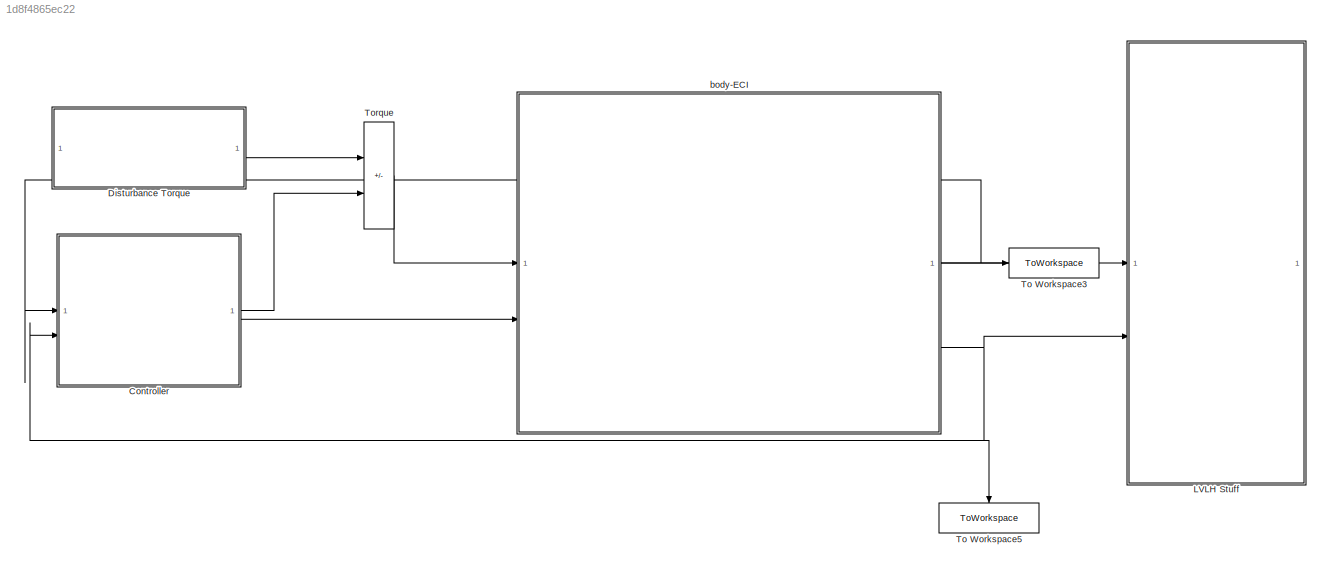
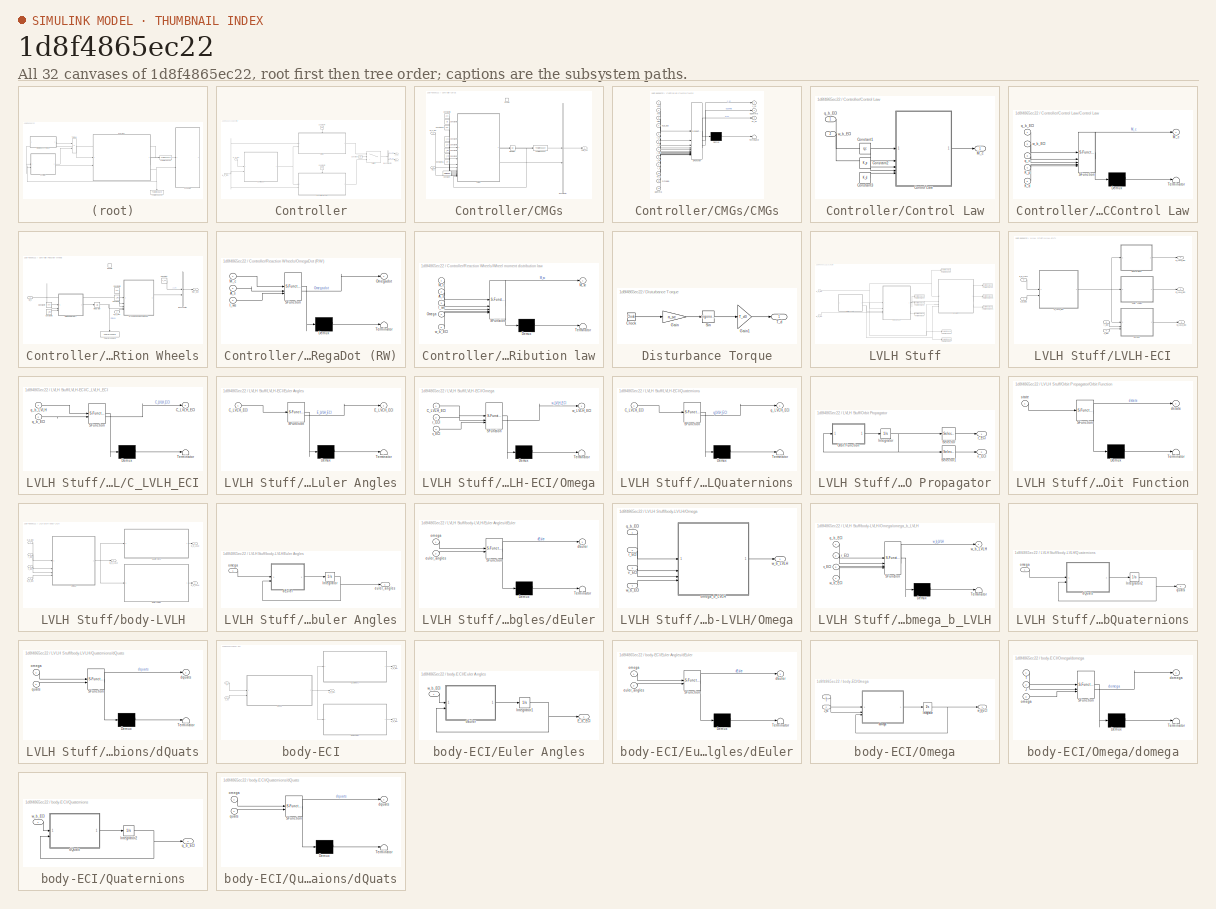
[diagram: thumbnail index - all 32 canvases of the model, root first then tree order]
MODEL slx_1d8f4865ec22
KIND model
CONFIG AbsTol = 1e-8
CONFIG EnableMultiTasking = off
CONFIG FixedStep = 1
CONFIG MaxStep = auto
CONFIG MinStep = auto
CONFIG RelTol = 1e-8
CONFIG SampleTimeConstraint = Unconstrained
CONFIG SolverName = VariableStepAuto
CONFIG StartTime = 0.0
CONFIG StopTime = sim_time
BLOCK [SubSystem] Controller
BLOCK [BusSelector] Controller/Bus Selector
  OutputSignals = J_sc,M_sc
BLOCK [SubSystem] Controller/CMGs
BLOCK [BusCreator] Controller/CMGs/Bus Creator
  DisplayOption = bar
  InheritFromInputs = on
  Inputs = 2
BLOCK [Outport] Controller/CMGs/CMG_out
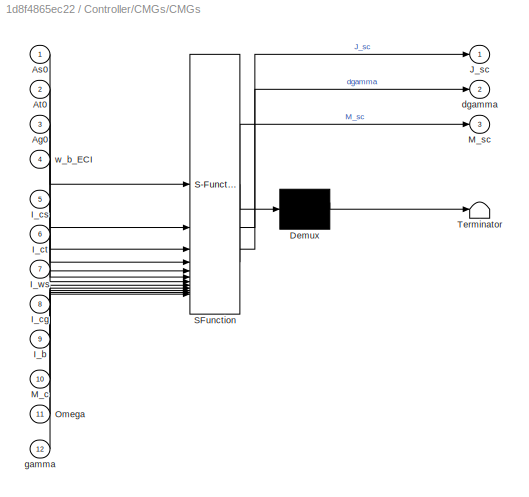
BLOCK [SubSystem] Controller/CMGs/CMGs
  ErrorFcn = Stateflow.Translate.translate
  PermitHierarchicalResolution = ExplicitOnly
  SFBlockType = MATLAB Function
  TreatAsAtomicUnit = on
BLOCK [Demux] Controller/CMGs/CMGs/ Demux 
  Outputs = 1
BLOCK [S-Function] Controller/CMGs/CMGs/ SFunction 
  EnableBusSupport = on
  FunctionName = sf_sfun
  PortCounts = [12 4]
  SFcnIsStateOwnerBlock = off
  SFunctionDeploymentMode = off
  Tag = Stateflow S-Function 13
BLOCK [Terminator] Controller/CMGs/CMGs/ Terminator 
BLOCK [Inport] Controller/CMGs/CMGs/Ag0
  Port = 3
BLOCK [Inport] Controller/CMGs/CMGs/As0
BLOCK [Inport] Controller/CMGs/CMGs/At0
  Port = 2
BLOCK [Inport] Controller/CMGs/CMGs/I_b
  Port = 9
BLOCK [Inport] Controller/CMGs/CMGs/I_cg
  Port = 8
BLOCK [Inport] Controller/CMGs/CMGs/I_cs
  Port = 5
BLOCK [Inport] Controller/CMGs/CMGs/I_ct
  Port = 6
BLOCK [Inport] Controller/CMGs/CMGs/I_ws
  Port = 7
BLOCK [Outport] Controller/CMGs/CMGs/J_sc
BLOCK [Inport] Controller/CMGs/CMGs/M_c
  Port = 10
BLOCK [Outport] Controller/CMGs/CMGs/M_sc
  Port = 3
BLOCK [Inport] Controller/CMGs/CMGs/Omega
  Port = 11
BLOCK [Outport] Controller/CMGs/CMGs/dgamma
  Port = 2
BLOCK [Inport] Controller/CMGs/CMGs/gamma
  Port = 12
BLOCK [Inport] Controller/CMGs/CMGs/w_b_ECI
  Port = 4
BLOCK [Constant] Controller/CMGs/Constant
  Value = Omega0
BLOCK [Constant] Controller/CMGs/Constant10
  Value = Ag0
BLOCK [Constant] Controller/CMGs/Constant11
  Value = I_b
BLOCK [Constant] Controller/CMGs/Constant4
  Value = I_cg
BLOCK [Constant] Controller/CMGs/Constant5
  Value = I_ws
BLOCK [Constant] Controller/CMGs/Constant6
  Value = I_ct
BLOCK [Constant] Controller/CMGs/Constant7
  Value = I_cs
BLOCK [Constant] Controller/CMGs/Constant8
  Value = As0
BLOCK [Constant] Controller/CMGs/Constant9
  Value = At0
BLOCK [EnablePort] Controller/CMGs/Enable
BLOCK [Integrator] Controller/CMGs/Integrator
  InitialCondition = gamma0
BLOCK [Inport] Controller/CMGs/M_c
  Port = 2
BLOCK [ToWorkspace] Controller/CMGs/To Workspace
  FixptAsFi = on
  MaxDataPoints = inf
  SampleTime = -1
  VariableName = gamma
BLOCK [Inport] Controller/CMGs/w_b_ECI
BLOCK [Constant] Controller/Constant
  Value = CMG
BLOCK [Constant] Controller/Constant4
  NameLocation = left
  Value = CMG
BLOCK [Constant] Controller/Constant5
  NameLocation = left
  Value = RW
BLOCK [SubSystem] Controller/Control Law
BLOCK [Constant] Controller/Control Law/Constant1
  Value = q_c
BLOCK [Constant] Controller/Control Law/Constant2
  Value = K_p
BLOCK [Constant] Controller/Control Law/Constant3
  Value = K_d
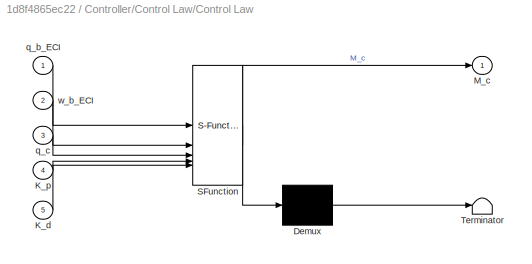
BLOCK [SubSystem] Controller/Control Law/Control Law
  ErrorFcn = Stateflow.Translate.translate
  PermitHierarchicalResolution = ExplicitOnly
  SFBlockType = MATLAB Function
  TreatAsAtomicUnit = on
BLOCK [Demux] Controller/Control Law/Control Law/ Demux 
  Outputs = 1
BLOCK [S-Function] Controller/Control Law/Control Law/ SFunction 
  EnableBusSupport = on
  FunctionName = sf_sfun
  PortCounts = [5 2]
  SFcnIsStateOwnerBlock = off
  SFunctionDeploymentMode = off
  Tag = Stateflow S-Function 1
BLOCK [Terminator] Controller/Control Law/Control Law/ Terminator 
BLOCK [Inport] Controller/Control Law/Control Law/K_d
  Port = 5
BLOCK [Inport] Controller/Control Law/Control Law/K_p
  Port = 4
BLOCK [Outport] Controller/Control Law/Control Law/M_c
BLOCK [Inport] Controller/Control Law/Control Law/q_b_ECI
BLOCK [Inport] Controller/Control Law/Control Law/q_c
  Port = 3
BLOCK [Inport] Controller/Control Law/Control Law/w_b_ECI
  Port = 2
BLOCK [Outport] Controller/Control Law/M_c
BLOCK [Inport] Controller/Control Law/q_b_ECI
BLOCK [Inport] Controller/Control Law/w_b_ECI
  Port = 2
BLOCK [Outport] Controller/J_sc
  Port = 2
BLOCK [Outport] Controller/M_sc
BLOCK [SubSystem] Controller/Reaction Wheels
BLOCK [BusCreator] Controller/Reaction Wheels/Bus Creator
  DisplayOption = bar
  InheritFromInputs = on
  Inputs = 2
BLOCK [Constant] Controller/Reaction Wheels/Constant
  Value = J_sc
BLOCK [Constant] Controller/Reaction Wheels/Constant4
  Value = As0
BLOCK [Constant] Controller/Reaction Wheels/Constant5
  Value = I_ws
BLOCK [Constant] Controller/Reaction Wheels/Constant7
  Value = I_ws
BLOCK [Constant] Controller/Reaction Wheels/Constant8
  Value = As0
BLOCK [EnablePort] Controller/Reaction Wheels/Enable
BLOCK [Integrator] Controller/Reaction Wheels/Integrator
  InitialCondition = Omega0
BLOCK [Inport] Controller/Reaction Wheels/M_c
BLOCK [SubSystem] Controller/Reaction Wheels/OmegaDot (RW)
  ErrorFcn = Stateflow.Translate.translate
  PermitHierarchicalResolution = ExplicitOnly
  SFBlockType = MATLAB Function
  TreatAsAtomicUnit = on
BLOCK [Demux] Controller/Reaction Wheels/OmegaDot (RW)/ Demux 
  Outputs = 1
BLOCK [S-Function] Controller/Reaction Wheels/OmegaDot (RW)/ SFunction 
  EnableBusSupport = on
  FunctionName = sf_sfun
  PortCounts = [3 2]
  SFcnIsStateOwnerBlock = off
  SFunctionDeploymentMode = off
  Tag = Stateflow S-Function 14
BLOCK [Terminator] Controller/Reaction Wheels/OmegaDot (RW)/ Terminator 
BLOCK [Inport] Controller/Reaction Wheels/OmegaDot (RW)/A_s
  Port = 2
BLOCK [Inport] Controller/Reaction Wheels/OmegaDot (RW)/I_ws
  Port = 3
BLOCK [Inport] Controller/Reaction Wheels/OmegaDot (RW)/M_c
BLOCK [Outport] Controller/Reaction Wheels/OmegaDot (RW)/Omegadot
BLOCK [Outport] Controller/Reaction Wheels/RW_out
BLOCK [ToWorkspace] Controller/Reaction Wheels/To Workspace
  FixptAsFi = on
  MaxDataPoints = inf
  NameLocation = left
  SampleTime = -1
  VariableName = RW_speeds
BLOCK [SubSystem] Controller/Reaction Wheels/Wheel moment distribution law
  ErrorFcn = Stateflow.Translate.translate
  PermitHierarchicalResolution = ExplicitOnly
  SFBlockType = MATLAB Function
  TreatAsAtomicUnit = on
BLOCK [Demux] Controller/Reaction Wheels/Wheel moment distribution law/ Demux 
  Outputs = 1
BLOCK [S-Function] Controller/Reaction Wheels/Wheel moment distribution law/ SFunction 
  EnableBusSupport = on
  FunctionName = sf_sfun
  PortCounts = [5 2]
  SFcnIsStateOwnerBlock = off
  SFunctionDeploymentMode = off
  Tag = Stateflow S-Function 15
BLOCK [Terminator] Controller/Reaction Wheels/Wheel moment distribution law/ Terminator 
BLOCK [Inport] Controller/Reaction Wheels/Wheel moment distribution law/A_s
  Port = 2
BLOCK [Inport] Controller/Reaction Wheels/Wheel moment distribution law/I_ws
  Port = 3
BLOCK [Inport] Controller/Reaction Wheels/Wheel moment distribution law/M_c
BLOCK [Outport] Controller/Reaction Wheels/Wheel moment distribution law/M_sc
BLOCK [Inport] Controller/Reaction Wheels/Wheel moment distribution law/Omega
  Port = 4
BLOCK [Inport] Controller/Reaction Wheels/Wheel moment distribution law/w_b_ECI
  Port = 5
BLOCK [Inport] Controller/Reaction Wheels/w_b_ECI
  Port = 2
BLOCK [Switch] Controller/Switch
  Criteria = u2 ~= 0
  InputSameDT = off
  SaturateOnIntegerOverflow = off
BLOCK [Inport] Controller/q_b_ECI
BLOCK [Inport] Controller/w_b_ECI
  Port = 2
BLOCK [SubSystem] Disturbance Torque
BLOCK [Clock] Disturbance Torque/Clock
BLOCK [Gain] Disturbance Torque/Gain
  Gain = n_sc
BLOCK [Gain] Disturbance Torque/Gain1
  Gain = T_d0
BLOCK [Trigonometry] Disturbance Torque/Sin
BLOCK [Outport] Disturbance Torque/T_d
BLOCK [SubSystem] LVLH Stuff
BLOCK [SubSystem] LVLH Stuff/LVLH-ECI
BLOCK [SubSystem] LVLH Stuff/LVLH-ECI/C_LVLH_ECI
  ErrorFcn = Stateflow.Translate.translate
  PermitHierarchicalResolution = ExplicitOnly
  SFBlockType = MATLAB Function
  TreatAsAtomicUnit = on
BLOCK [Demux] LVLH Stuff/LVLH-ECI/C_LVLH_ECI/ Demux 
  Outputs = 1
BLOCK [S-Function] LVLH Stuff/LVLH-ECI/C_LVLH_ECI/ SFunction 
  EnableBusSupport = on
  FunctionName = sf_sfun
  PortCounts = [2 2]
  SFcnIsStateOwnerBlock = off
  SFunctionDeploymentMode = off
  Tag = Stateflow S-Function 3
BLOCK [Terminator] LVLH Stuff/LVLH-ECI/C_LVLH_ECI/ Terminator 
BLOCK [Outport] LVLH Stuff/LVLH-ECI/C_LVLH_ECI/C_LVLH_ECI
BLOCK [Inport] LVLH Stuff/LVLH-ECI/C_LVLH_ECI/q_b_ECI
  Port = 2
BLOCK [Inport] LVLH Stuff/LVLH-ECI/C_LVLH_ECI/q_b_LVLH
BLOCK [Outport] LVLH Stuff/LVLH-ECI/E_LVLH_ECI
  Port = 2
BLOCK [SubSystem] LVLH Stuff/LVLH-ECI/Euler Angles
  ErrorFcn = Stateflow.Translate.translate
  PermitHierarchicalResolution = ExplicitOnly
  SFBlockType = MATLAB Function
  TreatAsAtomicUnit = on
BLOCK [Demux] LVLH Stuff/LVLH-ECI/Euler Angles/ Demux 
  Outputs = 1
BLOCK [S-Function] LVLH Stuff/LVLH-ECI/Euler Angles/ SFunction 
  EnableBusSupport = on
  FunctionName = sf_sfun
  PortCounts = [1 2]
  SFcnIsStateOwnerBlock = off
  SFunctionDeploymentMode = off
  Tag = Stateflow S-Function 11
BLOCK [Terminator] LVLH Stuff/LVLH-ECI/Euler Angles/ Terminator 
BLOCK [Inport] LVLH Stuff/LVLH-ECI/Euler Angles/C_LVLH_ECI
BLOCK [Outport] LVLH Stuff/LVLH-ECI/Euler Angles/E_LVLH_ECI
BLOCK [SubSystem] LVLH Stuff/LVLH-ECI/Omega
  ErrorFcn = Stateflow.Translate.translate
  PermitHierarchicalResolution = ExplicitOnly
  SFBlockType = MATLAB Function
  TreatAsAtomicUnit = on
BLOCK [Demux] LVLH Stuff/LVLH-ECI/Omega/ Demux 
  Outputs = 1
BLOCK [S-Function] LVLH Stuff/LVLH-ECI/Omega/ SFunction 
  EnableBusSupport = on
  FunctionName = sf_sfun
  PortCounts = [3 2]
  SFcnIsStateOwnerBlock = off
  SFunctionDeploymentMode = off
  Tag = Stateflow S-Function 12
BLOCK [Terminator] LVLH Stuff/LVLH-ECI/Omega/ Terminator 
BLOCK [Inport] LVLH Stuff/LVLH-ECI/Omega/C_LVLH_ECI
BLOCK [Inport] LVLH Stuff/LVLH-ECI/Omega/r_ECI
  Port = 2
BLOCK [Inport] LVLH Stuff/LVLH-ECI/Omega/v_ECI
  Port = 3
BLOCK [Outport] LVLH Stuff/LVLH-ECI/Omega/w_LVLH_ECI
BLOCK [SubSystem] LVLH Stuff/LVLH-ECI/Quaternions
  ErrorFcn = Stateflow.Translate.translate
  PermitHierarchicalResolution = ExplicitOnly
  SFBlockType = MATLAB Function
  TreatAsAtomicUnit = on
BLOCK [Demux] LVLH Stuff/LVLH-ECI/Quaternions/ Demux 
  Outputs = 1
BLOCK [S-Function] LVLH Stuff/LVLH-ECI/Quaternions/ SFunction 
  EnableBusSupport = on
  FunctionName = sf_sfun
  PortCounts = [1 2]
  SFcnIsStateOwnerBlock = off
  SFunctionDeploymentMode = off
  Tag = Stateflow S-Function 5
BLOCK [Terminator] LVLH Stuff/LVLH-ECI/Quaternions/ Terminator 
BLOCK [Inport] LVLH Stuff/LVLH-ECI/Quaternions/C_LVLH_ECI
BLOCK [Outport] LVLH Stuff/LVLH-ECI/Quaternions/q_LVLH_ECI
BLOCK [Outport] LVLH Stuff/LVLH-ECI/q_LVLH_ECI
BLOCK [Inport] LVLH Stuff/LVLH-ECI/q_b_ECI
BLOCK [Inport] LVLH Stuff/LVLH-ECI/q_b_LVLH
  Port = 2
BLOCK [Inport] LVLH Stuff/LVLH-ECI/r_ECI
  Port = 3
BLOCK [Inport] LVLH Stuff/LVLH-ECI/v_ECI
  Port = 4
BLOCK [Outport] LVLH Stuff/LVLH-ECI/w_LVLH_ECI
  Port = 3
BLOCK [SubSystem] LVLH Stuff/Orbit Propagator
BLOCK [Integrator] LVLH Stuff/Orbit Propagator/Integrator
  InitialCondition = [r0; v0]
BLOCK [SubSystem] LVLH Stuff/Orbit Propagator/Orbit Function
  ErrorFcn = Stateflow.Translate.translate
  PermitHierarchicalResolution = ExplicitOnly
  SFBlockType = MATLAB Function
  TreatAsAtomicUnit = on
BLOCK [Demux] LVLH Stuff/Orbit Propagator/Orbit Function/ Demux 
  Outputs = 1
BLOCK [S-Function] LVLH Stuff/Orbit Propagator/Orbit Function/ SFunction 
  EnableBusSupport = on
  FunctionName = sf_sfun
  PortCounts = [1 2]
  SFcnIsStateOwnerBlock = off
  SFunctionDeploymentMode = off
  Tag = Stateflow S-Function 4
BLOCK [Terminator] LVLH Stuff/Orbit Propagator/Orbit Function/ Terminator 
BLOCK [Outport] LVLH Stuff/Orbit Propagator/Orbit Function/dstate
BLOCK [Inport] LVLH Stuff/Orbit Propagator/Orbit Function/state
BLOCK [Selector] LVLH Stuff/Orbit Propagator/Selector
  IndexOptions = Index vector (dialog)
  Indices = [1; 2; 3]
  InputPortWidth = 6
  OutputSizes = 1
BLOCK [Selector] LVLH Stuff/Orbit Propagator/Selector1
  IndexOptions = Index vector (dialog)
  Indices = [4; 5; 6]
  InputPortWidth = 6
  OutputSizes = 1
BLOCK [Outport] LVLH Stuff/Orbit Propagator/r_ECI
BLOCK [Outport] LVLH Stuff/Orbit Propagator/v_ECI
  Port = 2
BLOCK [ToWorkspace] LVLH Stuff/To Workspace
  FixptAsFi = on
  MaxDataPoints = inf
  SampleTime = -1
  VariableName = w_b_LVLH
BLOCK [ToWorkspace] LVLH Stuff/To Workspace1
  FixptAsFi = on
  MaxDataPoints = inf
  SampleTime = -1
  Save2DSignal = 2-D array (concatenate along first dimension)
  VariableName = q_b_LVLH
BLOCK [ToWorkspace] LVLH Stuff/To Workspace10
  FixptAsFi = on
  MaxDataPoints = inf
  SampleTime = -1
  VariableName = E_LVLH_ECI
BLOCK [ToWorkspace] LVLH Stuff/To Workspace11
  FixptAsFi = on
  MaxDataPoints = inf
  SampleTime = -1
  VariableName = w_LVLH_ECI
BLOCK [ToWorkspace] LVLH Stuff/To Workspace2
  FixptAsFi = on
  MaxDataPoints = inf
  SampleTime = -1
  VariableName = E_b_LVLH
BLOCK [ToWorkspace] LVLH Stuff/To Workspace4
  FixptAsFi = on
  MaxDataPoints = inf
  SampleTime = -1
  VariableName = q_b_ECI
BLOCK [ToWorkspace] LVLH Stuff/To Workspace6
  FixptAsFi = on
  MaxDataPoints = inf
  SampleTime = -1
  VariableName = r_ECI
BLOCK [ToWorkspace] LVLH Stuff/To Workspace7
  FixptAsFi = on
  MaxDataPoints = inf
  SampleTime = -1
  VariableName = v_ECI
BLOCK [ToWorkspace] LVLH Stuff/To Workspace9
  FixptAsFi = on
  MaxDataPoints = inf
  SampleTime = -1
  VariableName = q_LVLH_ECI
BLOCK [SubSystem] LVLH Stuff/body-LVLH
BLOCK [Outport] LVLH Stuff/body-LVLH/E_b_LVLH
  Port = 2
BLOCK [SubSystem] LVLH Stuff/body-LVLH/Euler Angles
BLOCK [Integrator] LVLH Stuff/body-LVLH/Euler Angles/Integrator
  InitialCondition = E0_body_LVLH
BLOCK [SubSystem] LVLH Stuff/body-LVLH/Euler Angles/dEuler
  ErrorFcn = Stateflow.Translate.translate
  PermitHierarchicalResolution = ExplicitOnly
  SFBlockType = MATLAB Function
  TreatAsAtomicUnit = on
BLOCK [Demux] LVLH Stuff/body-LVLH/Euler Angles/dEuler/ Demux 
  Outputs = 1
BLOCK [S-Function] LVLH Stuff/body-LVLH/Euler Angles/dEuler/ SFunction 
  EnableBusSupport = on
  FunctionName = sf_sfun
  PortCounts = [2 2]
  SFcnIsStateOwnerBlock = off
  SFunctionDeploymentMode = off
  Tag = Stateflow S-Function 7
BLOCK [Terminator] LVLH Stuff/body-LVLH/Euler Angles/dEuler/ Terminator 
BLOCK [Outport] LVLH Stuff/body-LVLH/Euler Angles/dEuler/dEuler
BLOCK [Inport] LVLH Stuff/body-LVLH/Euler Angles/dEuler/euler_angles
  Port = 2
BLOCK [Inport] LVLH Stuff/body-LVLH/Euler Angles/dEuler/omega
BLOCK [Outport] LVLH Stuff/body-LVLH/Euler Angles/euler_angles
BLOCK [Inport] LVLH Stuff/body-LVLH/Euler Angles/omega
BLOCK [SubSystem] LVLH Stuff/body-LVLH/Omega
BLOCK [SubSystem] LVLH Stuff/body-LVLH/Omega/omega_b_LVLH
  ErrorFcn = Stateflow.Translate.translate
  LibrarySourceBlock = simulink/User-Defined\nFunctions/MATLAB Function
  PermitHierarchicalResolution = ExplicitOnly
  SFBlockType = MATLAB Function
  TreatAsAtomicUnit = on
BLOCK [Demux] LVLH Stuff/body-LVLH/Omega/omega_b_LVLH/ Demux 
  Outputs = 1
BLOCK [S-Function] LVLH Stuff/body-LVLH/Omega/omega_b_LVLH/ SFunction 
  EnableBusSupport = on
  FunctionName = sf_sfun
  PortCounts = [4 2]
  SFcnIsStateOwnerBlock = off
  SFunctionDeploymentMode = off
  Tag = Stateflow S-Function 8
BLOCK [Terminator] LVLH Stuff/body-LVLH/Omega/omega_b_LVLH/ Terminator 
BLOCK [Inport] LVLH Stuff/body-LVLH/Omega/omega_b_LVLH/q_b_ECI
BLOCK [Inport] LVLH Stuff/body-LVLH/Omega/omega_b_LVLH/r_ECI
  Port = 2
BLOCK [Inport] LVLH Stuff/body-LVLH/Omega/omega_b_LVLH/v_ECI
  Port = 3
BLOCK [Inport] LVLH Stuff/body-LVLH/Omega/omega_b_LVLH/w_b_ECI
  Port = 4
BLOCK [Outport] LVLH Stuff/body-LVLH/Omega/omega_b_LVLH/w_b_LVLH
BLOCK [Inport] LVLH Stuff/body-LVLH/Omega/q_b_ECI
BLOCK [Inport] LVLH Stuff/body-LVLH/Omega/r_ECI
  Port = 2
BLOCK [Inport] LVLH Stuff/body-LVLH/Omega/v_ECI
  Port = 3
BLOCK [Inport] LVLH Stuff/body-LVLH/Omega/w_b_ECI
  Port = 4
BLOCK [Outport] LVLH Stuff/body-LVLH/Omega/w_b_LVLH
BLOCK [SubSystem] LVLH Stuff/body-LVLH/Quaternions
BLOCK [Integrator] LVLH Stuff/body-LVLH/Quaternions/Integrator2
  InitialCondition = q0_body_LVLH
BLOCK [SubSystem] LVLH Stuff/body-LVLH/Quaternions/dQuats
  ErrorFcn = Stateflow.Translate.translate
  PermitHierarchicalResolution = ExplicitOnly
  SFBlockType = MATLAB Function
  TreatAsAtomicUnit = on
BLOCK [Demux] LVLH Stuff/body-LVLH/Quaternions/dQuats/ Demux 
  Outputs = 1
BLOCK [S-Function] LVLH Stuff/body-LVLH/Quaternions/dQuats/ SFunction 
  EnableBusSupport = on
  FunctionName = sf_sfun
  PortCounts = [2 2]
  SFcnIsStateOwnerBlock = off
  SFunctionDeploymentMode = off
  Tag = Stateflow S-Function 9
BLOCK [Terminator] LVLH Stuff/body-LVLH/Quaternions/dQuats/ Terminator 
BLOCK [Outport] LVLH Stuff/body-LVLH/Quaternions/dQuats/dquats
BLOCK [Inport] LVLH Stuff/body-LVLH/Quaternions/dQuats/omega
BLOCK [Inport] LVLH Stuff/body-LVLH/Quaternions/dQuats/quats
  Port = 2
BLOCK [Inport] LVLH Stuff/body-LVLH/Quaternions/omega
BLOCK [Outport] LVLH Stuff/body-LVLH/Quaternions/quats
BLOCK [Inport] LVLH Stuff/body-LVLH/q_b_ECI
BLOCK [Outport] LVLH Stuff/body-LVLH/q_b_LVLH
BLOCK [Inport] LVLH Stuff/body-LVLH/r_ECI
  Port = 2
BLOCK [Inport] LVLH Stuff/body-LVLH/v_ECI
  Port = 3
BLOCK [Inport] LVLH Stuff/body-LVLH/w_b_ECI
  Port = 4
BLOCK [Outport] LVLH Stuff/body-LVLH/w_b_LVLH
  Port = 3
BLOCK [Inport] LVLH Stuff/q_b_ECI
BLOCK [Inport] LVLH Stuff/w_b_ECI
  Port = 2
BLOCK [ToWorkspace] To Workspace3
  FixptAsFi = on
  MaxDataPoints = inf
  SampleTime = -1
  VariableName = E_b_ECI
BLOCK [ToWorkspace] To Workspace5
  FixptAsFi = on
  MaxDataPoints = inf
  NameLocation = left
  SampleTime = -1
  VariableName = w_b_ECI
BLOCK [Sum] Torque
  IconShape = rectangular
  Inputs = +-
BLOCK [SubSystem] body-ECI
BLOCK [Outport] body-ECI/E_b_ECI
  Port = 2
BLOCK [SubSystem] body-ECI/Euler Angles
BLOCK [Outport] body-ECI/Euler Angles/E_b_ECI
BLOCK [Integrator] body-ECI/Euler Angles/Integrator1
  InitialCondition = E0_body_ECI
BLOCK [SubSystem] body-ECI/Euler Angles/dEuler
  ErrorFcn = Stateflow.Translate.translate
  PermitHierarchicalResolution = ExplicitOnly
  SFBlockType = MATLAB Function
  TreatAsAtomicUnit = on
BLOCK [Demux] body-ECI/Euler Angles/dEuler/ Demux 
  Outputs = 1
BLOCK [S-Function] body-ECI/Euler Angles/dEuler/ SFunction 
  EnableBusSupport = on
  FunctionName = sf_sfun
  PortCounts = [2 2]
  SFcnIsStateOwnerBlock = off
  SFunctionDeploymentMode = off
  Tag = Stateflow S-Function 6
BLOCK [Terminator] body-ECI/Euler Angles/dEuler/ Terminator 
BLOCK [Outport] body-ECI/Euler Angles/dEuler/dEuler
BLOCK [Inport] body-ECI/Euler Angles/dEuler/euler_angles
  Port = 2
BLOCK [Inport] body-ECI/Euler Angles/dEuler/omega
BLOCK [Inport] body-ECI/Euler Angles/w_b_ECI
BLOCK [Inport] body-ECI/J_sc
  Port = 2
BLOCK [SubSystem] body-ECI/Omega
BLOCK [Integrator] body-ECI/Omega/Integrator
  InitialCondition = omega0_body_ECI
BLOCK [Inport] body-ECI/Omega/J_sc
  Port = 2
BLOCK [Inport] body-ECI/Omega/T
BLOCK [SubSystem] body-ECI/Omega/domega
  ErrorFcn = Stateflow.Translate.translate
  PermitHierarchicalResolution = ExplicitOnly
  SFBlockType = MATLAB Function
  TreatAsAtomicUnit = on
BLOCK [Demux] body-ECI/Omega/domega/ Demux 
  Outputs = 1
BLOCK [S-Function] body-ECI/Omega/domega/ SFunction 
  EnableBusSupport = on
  FunctionName = sf_sfun
  PortCounts = [3 2]
  SFcnIsStateOwnerBlock = off
  SFunctionDeploymentMode = off
  Tag = Stateflow S-Function 2
BLOCK [Terminator] body-ECI/Omega/domega/ Terminator 
BLOCK [Inport] body-ECI/Omega/domega/J
  Port = 2
BLOCK [Inport] body-ECI/Omega/domega/T
BLOCK [Outport] body-ECI/Omega/domega/domega
BLOCK [Inport] body-ECI/Omega/domega/omega
  Port = 3
BLOCK [Outport] body-ECI/Omega/w_b_ECI
BLOCK [SubSystem] body-ECI/Quaternions
BLOCK [Integrator] body-ECI/Quaternions/Integrator2
  InitialCondition = q0_body_ECI
BLOCK [SubSystem] body-ECI/Quaternions/dQuats
  ErrorFcn = Stateflow.Translate.translate
  PermitHierarchicalResolution = ExplicitOnly
  SFBlockType = MATLAB Function
  TreatAsAtomicUnit = on
BLOCK [Demux] body-ECI/Quaternions/dQuats/ Demux 
  Outputs = 1
BLOCK [S-Function] body-ECI/Quaternions/dQuats/ SFunction 
  EnableBusSupport = on
  FunctionName = sf_sfun
  PortCounts = [2 2]
  SFcnIsStateOwnerBlock = off
  SFunctionDeploymentMode = off
  Tag = Stateflow S-Function 10
BLOCK [Terminator] body-ECI/Quaternions/dQuats/ Terminator 
BLOCK [Outport] body-ECI/Quaternions/dQuats/dquats
BLOCK [Inport] body-ECI/Quaternions/dQuats/omega
BLOCK [Inport] body-ECI/Quaternions/dQuats/quats
  Port = 2
BLOCK [Outport] body-ECI/Quaternions/q_b_ECI
BLOCK [Inport] body-ECI/Quaternions/w_b_ECI
BLOCK [Inport] body-ECI/T
BLOCK [Outport] body-ECI/q_b_ECI
BLOCK [Outport] body-ECI/w_b_ECI
  Port = 3
LINE Controller/Bus Selector:1 -> Controller/J_sc:1
LINE Controller/Bus Selector:2 -> Controller/M_sc:1
LINE Controller/CMGs/Bus Creator:1 -> Controller/CMGs/CMG_out:1
LINE Controller/CMGs/CMGs:1 -> Controller/CMGs/Bus Creator:1
LINE Controller/CMGs/CMGs:2 -> Controller/CMGs/Integrator:1
LINE Controller/CMGs/CMGs:3 -> Controller/CMGs/Bus Creator:2
LINE Controller/CMGs/Constant10:1 -> Controller/CMGs/CMGs:3
LINE Controller/CMGs/Constant11:1 -> Controller/CMGs/CMGs:9
LINE Controller/CMGs/Constant4:1 -> Controller/CMGs/CMGs:8
LINE Controller/CMGs/Constant5:1 -> Controller/CMGs/CMGs:7
LINE Controller/CMGs/Constant6:1 -> Controller/CMGs/CMGs:6
LINE Controller/CMGs/Constant7:1 -> Controller/CMGs/CMGs:5
LINE Controller/CMGs/Constant8:1 -> Controller/CMGs/CMGs:1
LINE Controller/CMGs/Constant9:1 -> Controller/CMGs/CMGs:2
LINE Controller/CMGs/Constant:1 -> Controller/CMGs/CMGs:11
NET Controller/CMGs/Integrator:1 -> Controller/CMGs/CMGs:12, Controller/CMGs/To Workspace:1
LINE Controller/CMGs/M_c:1 -> Controller/CMGs/CMGs:10
LINE Controller/CMGs/w_b_ECI:1 -> Controller/CMGs/CMGs:4
LINE Controller/CMGs:1 -> Controller/Switch:1
LINE Controller/Constant4:1 -> Controller/CMGs:enable
LINE Controller/Constant5:1 -> Controller/Reaction Wheels:enable
LINE Controller/Constant:1 -> Controller/Switch:2
LINE Controller/Control Law/Constant1:1 -> Controller/Control Law/Control Law:3
LINE Controller/Control Law/Constant2:1 -> Controller/Control Law/Control Law:4
LINE Controller/Control Law/Constant3:1 -> Controller/Control Law/Control Law:5
LINE Controller/Control Law/Control Law:1 -> Controller/Control Law/M_c:1
LINE Controller/Control Law/q_b_ECI:1 -> Controller/Control Law/Control Law:1
LINE Controller/Control Law/w_b_ECI:1 -> Controller/Control Law/Control Law:2
NET Controller/Control Law:1 -> Controller/CMGs:2, Controller/Reaction Wheels:1
LINE Controller/Reaction Wheels/Bus Creator:1 -> Controller/Reaction Wheels/RW_out:1
LINE Controller/Reaction Wheels/Constant4:1 -> Controller/Reaction Wheels/OmegaDot (RW):2
LINE Controller/Reaction Wheels/Constant5:1 -> Controller/Reaction Wheels/OmegaDot (RW):3
LINE Controller/Reaction Wheels/Constant7:1 -> Controller/Reaction Wheels/Wheel moment distribution law:3
LINE Controller/Reaction Wheels/Constant8:1 -> Controller/Reaction Wheels/Wheel moment distribution law:2
LINE Controller/Reaction Wheels/Constant:1 -> Controller/Reaction Wheels/Bus Creator:1
NET Controller/Reaction Wheels/Integrator:1 -> Controller/Reaction Wheels/To Workspace:1, Controller/Reaction Wheels/Wheel moment distribution law:4
NET Controller/Reaction Wheels/M_c:1 -> Controller/Reaction Wheels/OmegaDot (RW):1, Controller/Reaction Wheels/Wheel moment distribution law:1
LINE Controller/Reaction Wheels/OmegaDot (RW):1 -> Controller/Reaction Wheels/Integrator:1
LINE Controller/Reaction Wheels/Wheel moment distribution law:1 -> Controller/Reaction Wheels/Bus Creator:2
LINE Controller/Reaction Wheels/w_b_ECI:1 -> Controller/Reaction Wheels/Wheel moment distribution law:5
LINE Controller/Reaction Wheels:1 -> Controller/Switch:3
LINE Controller/Switch:1 -> Controller/Bus Selector:1
LINE Controller/q_b_ECI:1 -> Controller/Control Law:1
NET Controller/w_b_ECI:1 -> Controller/CMGs:1, Controller/Control Law:2, Controller/Reaction Wheels:2
LINE Controller:1 -> Torque:2
LINE Controller:2 -> body-ECI:2
LINE Disturbance Torque/Clock:1 -> Disturbance Torque/Gain:1
LINE Disturbance Torque/Gain1:1 -> Disturbance Torque/T_d:1
LINE Disturbance Torque/Gain:1 -> Disturbance Torque/Sin:1
LINE Disturbance Torque/Sin:1 -> Disturbance Torque/Gain1:1
LINE Disturbance Torque:1 -> Torque:1
NET LVLH Stuff/LVLH-ECI/C_LVLH_ECI:1 -> LVLH Stuff/LVLH-ECI/Euler Angles:1, LVLH Stuff/LVLH-ECI/Omega:1, LVLH Stuff/LVLH-ECI/Quaternions:1
LINE LVLH Stuff/LVLH-ECI/Euler Angles:1 -> LVLH Stuff/LVLH-ECI/E_LVLH_ECI:1
LINE LVLH Stuff/LVLH-ECI/Omega:1 -> LVLH Stuff/LVLH-ECI/w_LVLH_ECI:1
LINE LVLH Stuff/LVLH-ECI/Quaternions:1 -> LVLH Stuff/LVLH-ECI/q_LVLH_ECI:1
LINE LVLH Stuff/LVLH-ECI/q_b_ECI:1 -> LVLH Stuff/LVLH-ECI/C_LVLH_ECI:2
LINE LVLH Stuff/LVLH-ECI/q_b_LVLH:1 -> LVLH Stuff/LVLH-ECI/C_LVLH_ECI:1
LINE LVLH Stuff/LVLH-ECI/r_ECI:1 -> LVLH Stuff/LVLH-ECI/Omega:2
LINE LVLH Stuff/LVLH-ECI/v_ECI:1 -> LVLH Stuff/LVLH-ECI/Omega:3
LINE LVLH Stuff/LVLH-ECI:1 -> LVLH Stuff/To Workspace9:1
LINE LVLH Stuff/LVLH-ECI:2 -> LVLH Stuff/To Workspace10:1
LINE LVLH Stuff/LVLH-ECI:3 -> LVLH Stuff/To Workspace11:1
NET LVLH Stuff/Orbit Propagator/Integrator:1 -> LVLH Stuff/Orbit Propagator/Orbit Function:1, LVLH Stuff/Orbit Propagator/Selector1:1, LVLH Stuff/Orbit Propagator/Selector:1
LINE LVLH Stuff/Orbit Propagator/Orbit Function:1 -> LVLH Stuff/Orbit Propagator/Integrator:1
LINE LVLH Stuff/Orbit Propagator/Selector1:1 -> LVLH Stuff/Orbit Propagator/v_ECI:1
LINE LVLH Stuff/Orbit Propagator/Selector:1 -> LVLH Stuff/Orbit Propagator/r_ECI:1
NET LVLH Stuff/Orbit Propagator:1 -> LVLH Stuff/LVLH-ECI:3, LVLH Stuff/To Workspace6:1, LVLH Stuff/body-LVLH:2
NET LVLH Stuff/Orbit Propagator:2 -> LVLH Stuff/LVLH-ECI:4, LVLH Stuff/To Workspace7:1, LVLH Stuff/body-LVLH:3
NET LVLH Stuff/body-LVLH/Euler Angles/Integrator:1 -> LVLH Stuff/body-LVLH/Euler Angles/dEuler:2, LVLH Stuff/body-LVLH/Euler Angles/euler_angles:1
LINE LVLH Stuff/body-LVLH/Euler Angles/dEuler:1 -> LVLH Stuff/body-LVLH/Euler Angles/Integrator:1
LINE LVLH Stuff/body-LVLH/Euler Angles/omega:1 -> LVLH Stuff/body-LVLH/Euler Angles/dEuler:1
LINE LVLH Stuff/body-LVLH/Euler Angles:1 -> LVLH Stuff/body-LVLH/E_b_LVLH:1
LINE LVLH Stuff/body-LVLH/Omega/omega_b_LVLH:1 -> LVLH Stuff/body-LVLH/Omega/w_b_LVLH:1
LINE LVLH Stuff/body-LVLH/Omega/q_b_ECI:1 -> LVLH Stuff/body-LVLH/Omega/omega_b_LVLH:1
LINE LVLH Stuff/body-LVLH/Omega/r_ECI:1 -> LVLH Stuff/body-LVLH/Omega/omega_b_LVLH:2
LINE LVLH Stuff/body-LVLH/Omega/v_ECI:1 -> LVLH Stuff/body-LVLH/Omega/omega_b_LVLH:3
LINE LVLH Stuff/body-LVLH/Omega/w_b_ECI:1 -> LVLH Stuff/body-LVLH/Omega/omega_b_LVLH:4
NET LVLH Stuff/body-LVLH/Omega:1 -> LVLH Stuff/body-LVLH/Euler Angles:1, LVLH Stuff/body-LVLH/Quaternions:1, LVLH Stuff/body-LVLH/w_b_LVLH:1
NET LVLH Stuff/body-LVLH/Quaternions/Integrator2:1 -> LVLH Stuff/body-LVLH/Quaternions/dQuats:2, LVLH Stuff/body-LVLH/Quaternions/quats:1
LINE LVLH Stuff/body-LVLH/Quaternions/dQuats:1 -> LVLH Stuff/body-LVLH/Quaternions/Integrator2:1
LINE LVLH Stuff/body-LVLH/Quaternions/omega:1 -> LVLH Stuff/body-LVLH/Quaternions/dQuats:1
LINE LVLH Stuff/body-LVLH/Quaternions:1 -> LVLH Stuff/body-LVLH/q_b_LVLH:1
LINE LVLH Stuff/body-LVLH/q_b_ECI:1 -> LVLH Stuff/body-LVLH/Omega:1
LINE LVLH Stuff/body-LVLH/r_ECI:1 -> LVLH Stuff/body-LVLH/Omega:2
LINE LVLH Stuff/body-LVLH/v_ECI:1 -> LVLH Stuff/body-LVLH/Omega:3
LINE LVLH Stuff/body-LVLH/w_b_ECI:1 -> LVLH Stuff/body-LVLH/Omega:4
NET LVLH Stuff/body-LVLH:1 -> LVLH Stuff/LVLH-ECI:2, LVLH Stuff/To Workspace1:1
LINE LVLH Stuff/body-LVLH:2 -> LVLH Stuff/To Workspace2:1
LINE LVLH Stuff/body-LVLH:3 -> LVLH Stuff/To Workspace:1
NET LVLH Stuff/q_b_ECI:1 -> LVLH Stuff/LVLH-ECI:1, LVLH Stuff/To Workspace4:1, LVLH Stuff/body-LVLH:1
LINE LVLH Stuff/w_b_ECI:1 -> LVLH Stuff/body-LVLH:4
LINE Torque:1 -> body-ECI:1
NET body-ECI/Euler Angles/Integrator1:1 -> body-ECI/Euler Angles/E_b_ECI:1, body-ECI/Euler Angles/dEuler:2
LINE body-ECI/Euler Angles/dEuler:1 -> body-ECI/Euler Angles/Integrator1:1
LINE body-ECI/Euler Angles/w_b_ECI:1 -> body-ECI/Euler Angles/dEuler:1
LINE body-ECI/Euler Angles:1 -> body-ECI/E_b_ECI:1
LINE body-ECI/J_sc:1 -> body-ECI/Omega:2
NET body-ECI/Omega/Integrator:1 -> body-ECI/Omega/domega:3, body-ECI/Omega/w_b_ECI:1
LINE body-ECI/Omega/J_sc:1 -> body-ECI/Omega/domega:2
LINE body-ECI/Omega/T:1 -> body-ECI/Omega/domega:1
LINE body-ECI/Omega/domega:1 -> body-ECI/Omega/Integrator:1
NET body-ECI/Omega:1 -> body-ECI/Euler Angles:1, body-ECI/Quaternions:1, body-ECI/w_b_ECI:1
NET body-ECI/Quaternions/Integrator2:1 -> body-ECI/Quaternions/dQuats:2, body-ECI/Quaternions/q_b_ECI:1
LINE body-ECI/Quaternions/dQuats:1 -> body-ECI/Quaternions/Integrator2:1
LINE body-ECI/Quaternions/w_b_ECI:1 -> body-ECI/Quaternions/dQuats:1
LINE body-ECI/Quaternions:1 -> body-ECI/q_b_ECI:1
LINE body-ECI/T:1 -> body-ECI/Omega:1
NET body-ECI:1 -> Controller:1, LVLH Stuff:1
LINE body-ECI:2 -> To Workspace3:1
NET body-ECI:3 -> Controller:2, LVLH Stuff:2, To Workspace5:1
note: NET lines group one-source signal fan-out (src -> all destinations, sorted); 1:1 wires keep LINE
CHART LVLH Stuff/LVLH-ECI/Euler Angles states=1 transitions=1
  STATE_LABEL 'eML_blk_kernel()'
  STATE_LABEL 'SCRIPT:\nfunction E_LVLH_ECI = fcn(C_LVLH_ECI)\n\nE_LVLH_ECI = euler_from_C(C_LVLH_ECI);\n'
CHART LVLH Stuff/LVLH-ECI/Omega states=1 transitions=1
  STATE_LABEL 'eML_blk_kernel()'
  STATE_LABEL 'SCRIPT:\nfunction w_LVLH_ECI = fcn(C_LVLH_ECI, r_ECI, v_ECI)\n\nw_LVLH_ECI = C_LVLH_ECI * (cross(r_ECI, v_ECI) / norm(r_ECI)^2);\n'
CHART Controller/CMGs/CMGs states=1 transitions=1
  STATE_LABEL 'eML_blk_kernel()'
  STATE_LABEL "SCRIPT:\nfunction [J_sc, dgamma, M_sc] = fcn(As0, At0, Ag0, w_b_ECI, I_cs, I_ct, I_ws, I_cg, I_b, M_c, Omega, gamma)\n\nA_s = (As0 * diag(cos(gamma))) + (At0*(diag(sin(gamma))));\nA_t = (At0 * diag(cos(gamma))) - (As0*(diag(sin(gamma))));\nA_g = Ag0;\n\nJ_sc = I_b + A_s*I_cs*A_s' + A_t*I_ct*A_t' + A_g*I_cg*A_g';\n\nN = 4;\nC1 = zeros(3,N); C2 = C1;\nfor i = 1:N\n    C1(:,i) = A_t(:,i)*A_s(:,i)'*w_b_ECI;\n    C...<+230ch>"
CHART Controller/Reaction Wheels/OmegaDot (RW) states=1 transitions=1
  STATE_LABEL 'eML_blk_kernel()'
  STATE_LABEL 'SCRIPT:\nfunction Omegadot = fcn(M_c, A_s, I_ws)\n\nOmegadot = (I_ws) \\ pinv(A_s) * M_c;\n\n'
CHART Controller/Reaction Wheels/Wheel moment distribution law states=1 transitions=1
  STATE_LABEL 'eML_blk_kernel()'
  STATE_LABEL 'SCRIPT:\nfunction M_sc = fcn(M_c, A_s, I_ws, Omega, w_b_ECI)\n\nM_sc =  M_c + (cross(w_b_ECI, (A_s *I_ws* Omega)));\n'
CHART Controller/Control Law/Control Law states=1 transitions=1
  STATE_LABEL 'eML_blk_kernel()'
  STATE_LABEL 'SCRIPT:\nfunction M_c   = fcn(q_b_ECI, w_b_ECI, q_c, K_p, K_d)\n\nq_e = quatmult(q_b_ECI, quatconjugate(q_c));\n\neta_e = q_e(4);\neps_e = q_e(1:3);\n\nM_c = K_p*eps_e*sign(eta_e) + (K_d*w_b_ECI);\n\n\n'
CHART body-ECI/Omega/domega states=1 transitions=1
  STATE_LABEL 'eML_blk_kernel()'
  STATE_LABEL 'SCRIPT:\nfunction domega = fcn(T, J, omega)\n\n\n\ndomega = J\\(T - cross(omega, (J*omega)));\n'
CHART LVLH Stuff/LVLH-ECI/C_LVLH_ECI states=1 transitions=1
  STATE_LABEL 'eML_blk_kernel()'
  STATE_LABEL "SCRIPT:\nfunction C_LVLH_ECI = fcn(q_b_LVLH, q_b_ECI)\n\nC_b_LVLH = quat2C(q_b_LVLH);\nC_LVLH_b = C_b_LVLH';\n\nC_b_ECI = quat2C(q_b_ECI);\n\nC_LVLH_ECI = C_LVLH_b*C_b_ECI;\n"
CHART LVLH Stuff/Orbit Propagator/Orbit Function states=1 transitions=1
  STATE_LABEL 'eML_blk_kernel()'
  STATE_LABEL 'SCRIPT:\nfunction dstate = two_body(state)\n\nmu = 398600.4418;\n\nx = state(1);\ny = state(2);\nz = state(3);\n\ndx = state(4);\ndy = state(5);\ndz = state(6);\n\nr = norm([x y z]);\n\nddx = -mu*x/r^3;\nddy = -mu*y/r^3;\nddz = -mu*z/r^3;\n\n\ndstate = [dx; dy; dz; ddx; ddy; ddz];\nend'
CHART LVLH Stuff/LVLH-ECI/Quaternions states=1 transitions=1
  STATE_LABEL 'eML_blk_kernel()'
  STATE_LABEL 'SCRIPT:\nfunction q_LVLH_ECI = fcn(C_LVLH_ECI)\n\nq_LVLH_ECI = C2quat(C_LVLH_ECI);\n'
CHART body-ECI/Euler Angles/dEuler states=1 transitions=1
  STATE_LABEL 'eML_blk_kernel()'
  STATE_LABEL 'SCRIPT:\nfunction dEuler = fcn(omega, euler_angles)\n\ndEuler = [1 sin(euler_angles(1))*tan(euler_angles(2)) cos(euler_angles(1))*tan(euler_angles(2));...\n            0 cos(euler_angles(1)) -sin(euler_angles(1));...\n            0 sin(euler_angles(1))*sec(euler_angles(2)) cos(euler_angles(1))*sec(euler_angles(2))] * omega;\n'
CHART LVLH Stuff/body-LVLH/Euler Angles/dEuler states=1 transitions=1
  STATE_LABEL 'eML_blk_kernel()'
  STATE_LABEL 'SCRIPT:\nfunction dEuler = fcn(omega, euler_angles)\n\ndEuler = [1 sin(euler_angles(1))*tan(euler_angles(2)) cos(euler_angles(1))*tan(euler_angles(2));...\n            0 cos(euler_angles(1)) -sin(euler_angles(1));...\n            0 sin(euler_angles(1))*sec(euler_angles(2)) cos(euler_angles(1))*sec(euler_angles(2))] * omega;'
CHART LVLH Stuff/body-LVLH/Omega/omega_b_LVLH states=1 transitions=1
  STATE_LABEL 'eML_blk_kernel()'
  STATE_LABEL 'SCRIPT:\nfunction w_b_LVLH   = fcn(q_b_ECI, r_ECI, v_ECI, w_b_ECI)\n\nC_b_ECI = quat2C(q_b_ECI);\n\nw_LVLH_ECI = cross(r_ECI, v_ECI)/norm(r_ECI)^2;\n\nw_b_LVLH = w_b_ECI - (C_b_ECI*w_LVLH_ECI);\n\n\nend\n\n\n'
CHART LVLH Stuff/body-LVLH/Quaternions/dQuats states=1 transitions=1
  STATE_LABEL 'eML_blk_kernel()'
  STATE_LABEL "SCRIPT:\nfunction dquats = fcn(omega, quats)\n\neta = quats(4);\neps = quats(1:3);\neps_dot = 0.5*(eta*eye(3) + vect2cross(eps))*omega;\neta_dot = -0.5*eps'*omega;\n\ndquats = [eps_dot; eta_dot];\n"
CHART body-ECI/Quaternions/dQuats states=1 transitions=1
  STATE_LABEL 'eML_blk_kernel()'
  STATE_LABEL "SCRIPT:\nfunction dquats = fcn(omega, quats)\n\neta = quats(4);\neps = quats(1:3);\neps_dot = 0.5*(eta*eye(3) + vect2cross(eps))*omega;\neta_dot = -0.5*eps'*omega;\n\ndquats = [eps_dot; eta_dot];\n"
CHART  states=0 transitions=0
CHART  states=0 transitions=0
CHART  states=0 transitions=0
CHART  states=0 transitions=0
CHART  states=0 transitions=0
CHART  states=0 transitions=0
CHART  states=0 transitions=0
CHART  states=0 transitions=0
CHART  states=0 transitions=0
CHART  states=0 transitions=0
CHART  states=0 transitions=0
CHART  states=0 transitions=0
CHART  states=0 transitions=0
CHART  states=0 transitions=0
CHART  states=0 transitions=0
